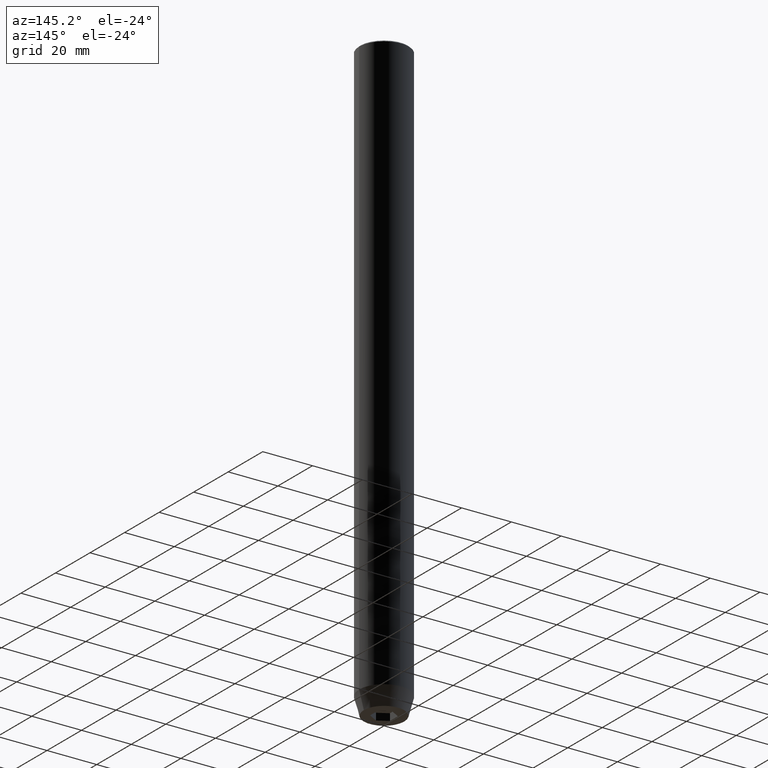
[diagram: clean part render]
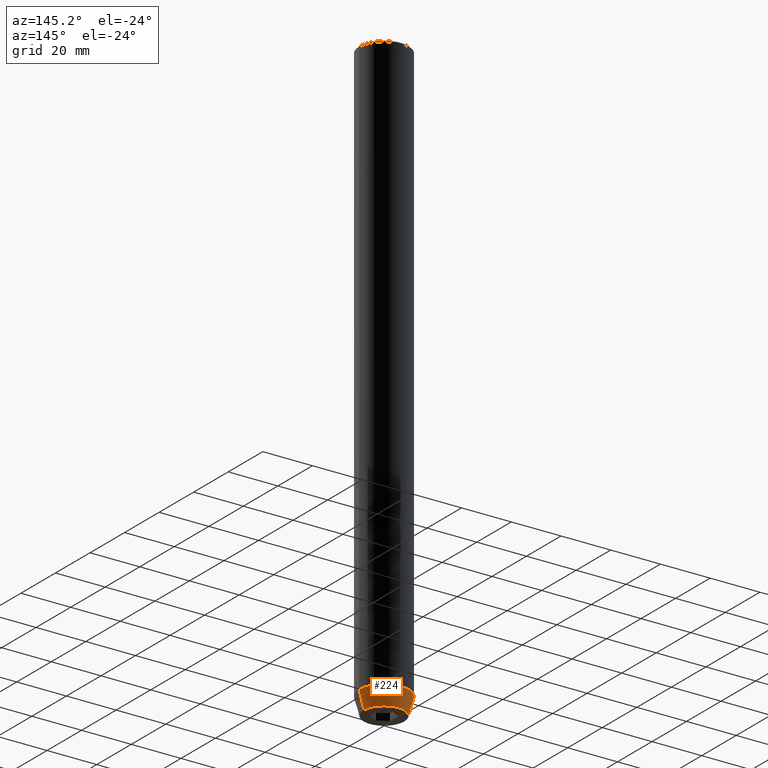
[diagram: same view with one face highlighted and labeled with its STEP entity id]
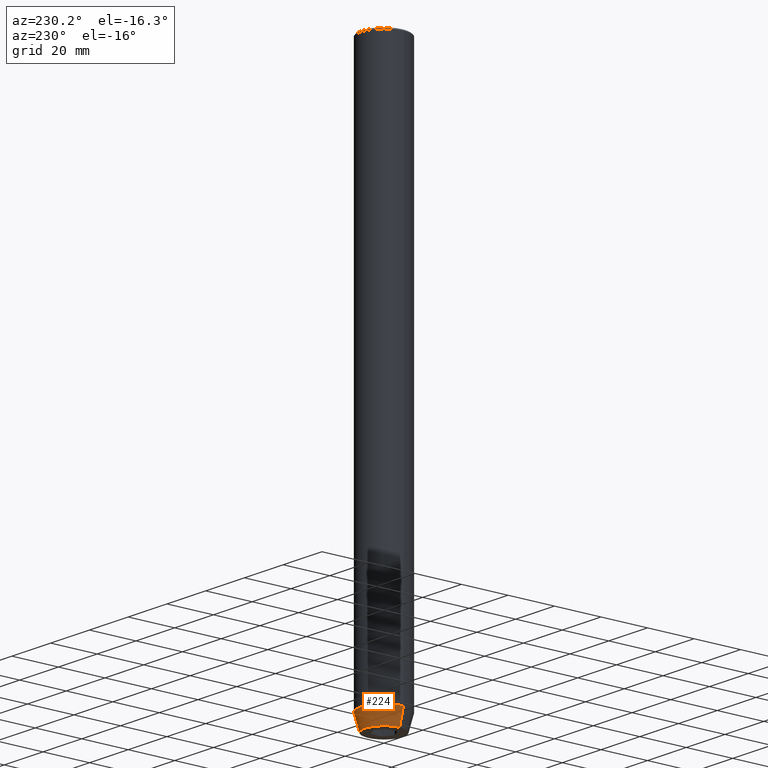
[diagram: same view with one face highlighted and labeled with its STEP entity id]
A machine part, auxiliary view. The second image highlights one B-rep face of the part: STEP entity #224.
A second angle (auxiliary view) of the same face is appended — the face is thin or edge-on in the first view.
In plain terms, the highlighted conical surface has half-angle 15 deg.
Its self-contained STEP definition (entity closure, byte-faithful):
#2 = CARTESIAN_POINT ( 'NONE',  ( -10.00000000000000000, 1.224646799147353256E-15, -232.9999999999999716 ) ) ;
#44 = VECTOR ( 'NONE', #457, 1000.000000000000114 ) ;
#68 = VERTEX_POINT ( 'NONE', #397 ) ;
#75 = DIRECTION ( 'NONE',  ( -0.000000000000000000, -0.000000000000000000, 1.000000000000000000 ) ) ;
#89 = EDGE_CURVE ( 'NONE', #432, #389, #327, .T. ) ;
#103 = DIRECTION ( 'NONE',  ( -0.000000000000000000, -0.000000000000000000, 1.000000000000000000 ) ) ;
#111 = DIRECTION ( 'NONE',  ( -0.000000000000000000, -0.000000000000000000, 1.000000000000000000 ) ) ;
#113 = DIRECTION ( 'NONE',  ( 1.000000000000000000, 0.000000000000000000, 0.000000000000000000 ) ) ;
#124 = DIRECTION ( 'NONE',  ( 1.000000000000000000, 0.000000000000000000, 0.000000000000000000 ) ) ;
#133 = CIRCLE ( 'NONE', #382, 10.00000000000000000 ) ;
#165 = CARTESIAN_POINT ( 'NONE',  ( -8.124355652982137244, 1.109796706851640556E-15, -240.0000000000000000 ) ) ;
#191 = CARTESIAN_POINT ( 'NONE',  ( 8.124355652982137244, 0.000000000000000000, -240.0000000000000000 ) ) ;
#203 = EDGE_CURVE ( 'NONE', #566, #68, #133, .T. ) ;
#210 = CARTESIAN_POINT ( 'NONE',  ( 10.00000000000000000, 0.000000000000000000, -232.9999999999999716 ) ) ;
#224 = ADVANCED_FACE ( 'NONE', ( #475 ), #249, .T. ) ;
#249 = CONICAL_SURFACE ( 'NONE', #276, 10.00000000000000000, 0.2617993877991497964 ) ;
#258 = ORIENTED_EDGE ( 'NONE', *, *, #288, .T. ) ;
#276 = AXIS2_PLACEMENT_3D ( 'NONE', #478, #111, #113 ) ;
#287 = AXIS2_PLACEMENT_3D ( 'NONE', #530, #75, #124 ) ;
#288 = EDGE_CURVE ( 'NONE', #389, #68, #321, .T. ) ;
#291 = ORIENTED_EDGE ( 'NONE', *, *, #89, .T. ) ;
#306 = EDGE_LOOP ( 'NONE', ( #291, #258, #343, #362 ) ) ;
#321 = LINE ( 'NONE', #2, #44 ) ;
#327 = CIRCLE ( 'NONE', #287, 8.124355652982137244 ) ;
#339 = VECTOR ( 'NONE', #388, 1000.000000000000114 ) ;
#343 = ORIENTED_EDGE ( 'NONE', *, *, #203, .F. ) ;
#362 = ORIENTED_EDGE ( 'NONE', *, *, #565, .F. ) ;
#382 = AXIS2_PLACEMENT_3D ( 'NONE', #558, #103, #525 ) ;
#388 = DIRECTION ( 'NONE',  ( 0.2588190451025210725, 0.000000000000000000, 0.9659258262890680902 ) ) ;
#389 = VERTEX_POINT ( 'NONE', #165 ) ;
#397 = CARTESIAN_POINT ( 'NONE',  ( -10.00000000000000000, 1.224646799147353256E-15, -232.9999999999999716 ) ) ;
#432 = VERTEX_POINT ( 'NONE', #191 ) ;
#444 = CARTESIAN_POINT ( 'NONE',  ( 10.00000000000000000, 0.000000000000000000, -232.9999999999999716 ) ) ;
#457 = DIRECTION ( 'NONE',  ( -0.2588190451025210725, 3.169619151431769255E-17, 0.9659258262890680902 ) ) ;
#475 = FACE_OUTER_BOUND ( 'NONE', #306, .T. ) ;
#478 = CARTESIAN_POINT ( 'NONE',  ( 0.000000000000000000, 0.000000000000000000, -232.9999999999999716 ) ) ;
#491 = LINE ( 'NONE', #210, #339 ) ;
#525 = DIRECTION ( 'NONE',  ( 1.000000000000000000, 0.000000000000000000, 0.000000000000000000 ) ) ;
#530 = CARTESIAN_POINT ( 'NONE',  ( 0.000000000000000000, 0.000000000000000000, -240.0000000000000000 ) ) ;
#558 = CARTESIAN_POINT ( 'NONE',  ( 0.000000000000000000, 0.000000000000000000, -232.9999999999999716 ) ) ;
#565 = EDGE_CURVE ( 'NONE', #432, #566, #491, .T. ) ;
#566 = VERTEX_POINT ( 'NONE', #444 ) ;